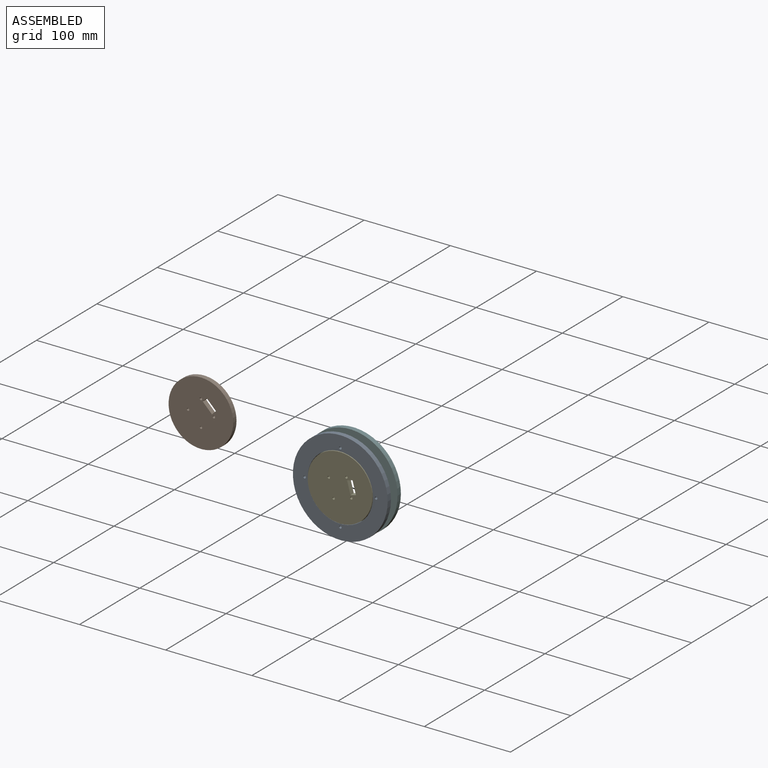
[diagram: assembled view]
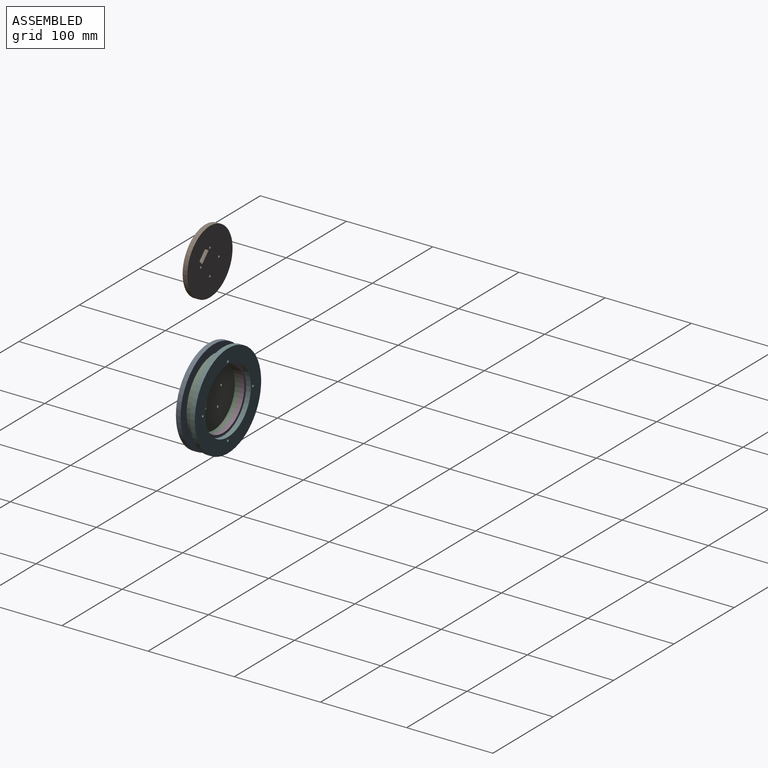
[diagram: assembled view, second angle]
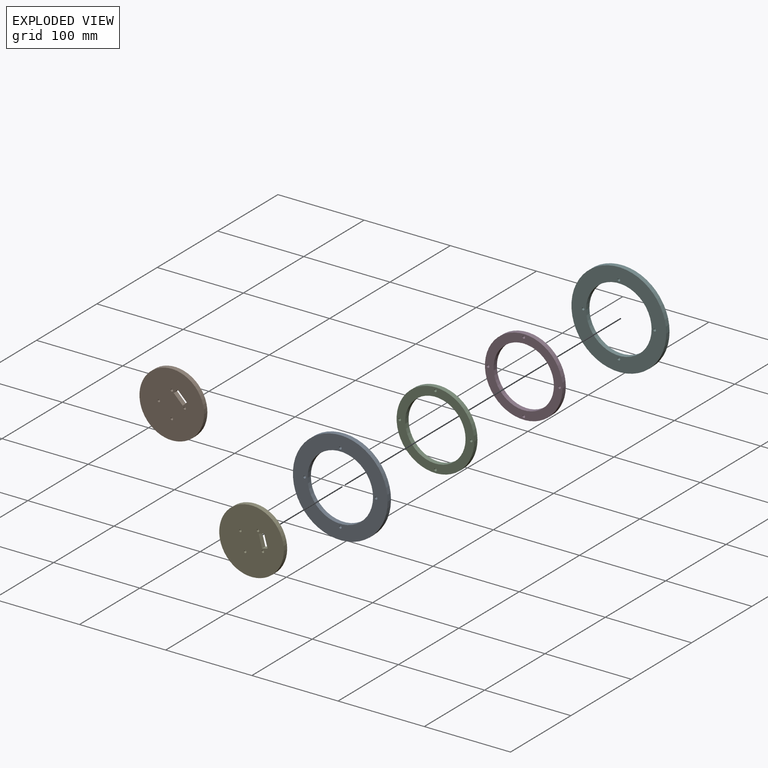
[diagram: exploded view]
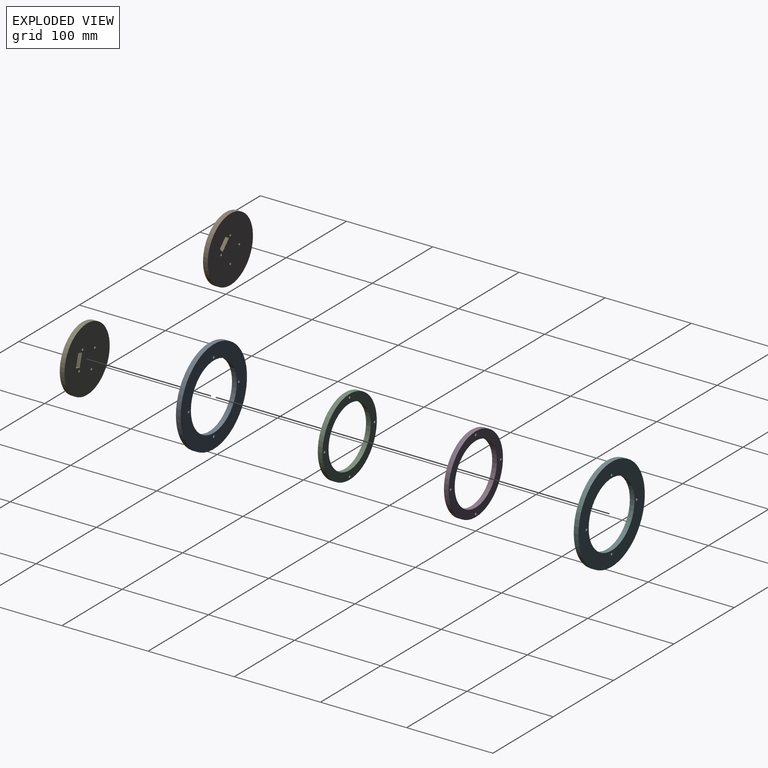
[diagram: exploded view, second angle]
ASSEMBLY  parts=6 mates=7
PART A: 8 faces, bbox 110x5.5x110 mm
  f0: cylinder r=1.5mm len=5.47mm, axis (0,1,0), area 51.6mm2, adj f6,f7
  f1: cylinder r=1.5mm len=5.47mm, axis (0,1,0), area 51.6mm2, adj f6,f7
  f2: cylinder r=1.5mm len=5.47mm, axis (0,1,0), area 51.6mm2, adj f6,f7
  f3: cylinder r=1.5mm len=5.47mm, axis (0,1,0), area 51.6mm2, adj f6,f7
  f4: cylinder r=38mm len=76mm, axis (0,1,0), area 1306mm2, adj f6,f7
  f5: cylinder r=55mm len=110mm, axis (0,1,0), area 1890.3mm2, adj f6,f7
  f6: plane 110x110mm, normal (0,-1,0), area 4938.6mm2, adj f0,f1,f2,f3,f4,f5
  f7: plane 110x110mm, normal (0,1,0), area 4938.6mm2, adj f0,f1,f2,f3,f4,f5
PART B: 11 faces, bbox 75x5.5x75 mm
  f0: plane 10.61x10.61mm, normal (0.71,0,0.71), area 82.1mm2, adj f1,f3,f5,f6
  f1: plane 5.47x4.64mm, normal (0.71,0,-0.71), area 35.9mm2, adj f0,f2,f5,f6
  f2: plane 10.61x10.61mm, normal (-0.71,0,-0.71), area 82mm2, adj f1,f3,f5,f6
  f3: plane 5.47x4.64mm, normal (-0.71,0,0.71), area 35.9mm2, adj f0,f2,f5,f6
  f4: cylinder r=37.5mm len=75mm, axis (0,1,0), area 1288.8mm2, adj f5,f6
  f5: plane 75x75mm, normal (0,-1,0), area 4294.4mm2, adj f0,f1,f2,f3,f4,f7,f8,f9
  f6: plane 75x75mm, normal (0,1,0), area 4294.4mm2, adj f0,f1,f2,f3,f4,f7,f8,f9
  f7: cylinder r=1.41mm len=5.47mm, axis (0,1,0), area 48.5mm2, adj f5,f6
  f8: cylinder r=1.41mm len=5.47mm, axis (0,1,0), area 48.5mm2, adj f5,f6
  f9: cylinder r=1.41mm len=5.47mm, axis (0,1,0), area 48.5mm2, adj f5,f6
  f10: cylinder r=1.41mm len=5.47mm, axis (0,1,0), area 48.5mm2, adj f5,f6
PART C: 8 faces, bbox 90x5.5x90 mm
  f0: cylinder r=1.5mm len=5.47mm, axis (0,1,0), area 51.6mm2, adj f6,f7
  f1: cylinder r=1.5mm len=5.47mm, axis (0,1,0), area 51.6mm2, adj f6,f7
  f2: cylinder r=1.5mm len=5.47mm, axis (0,1,0), area 51.6mm2, adj f6,f7
  f3: cylinder r=1.5mm len=5.47mm, axis (0,1,0), area 51.6mm2, adj f6,f7
  f4: cylinder r=35mm len=70mm, axis (0,1,0), area 1202.9mm2, adj f6,f7
  f5: cylinder r=45mm len=90mm, axis (0,1,0), area 1546.6mm2, adj f6,f7
  f6: plane 90x90mm, normal (0,-1,0), area 2485mm2, adj f0,f1,f2,f3,f4,f5
  f7: plane 90x90mm, normal (0,1,0), area 2485mm2, adj f0,f1,f2,f3,f4,f5
PART D: same geometry as C
PART E: same geometry as B
PART F: same geometry as A
PLACE A t=(-0.67,-4.27,12.19)mm fixed
PLACE B t=(-107.07,-83.25,91.94)mm
PLACE C t=(-0.67,1.2,12.19)mm
PLACE D t=(-0.67,6.67,12.19)mm
PLACE E rot(axis=(0,1,0),29.6deg) t=(-0.67,-4.78,12.19)mm
PLACE F t=(-0.67,12.14,12.19)mm
MATE planar F.f4 <-> D.f4  axis (0,-1,0) through (-0.67,6.67,12.19)mm
MATE cylindrical F.f4 <-> D.f4  axis (0,-1,0) through (-0.67,6.67,12.19)mm
MATE cylindrical E.f4 <-> A.f4  axis (0,1,0) through (-0.67,-4.78,12.19)mm
MATE planar C.f4 <-> A.f4  axis (0,-1,0) through (-0.67,-4.27,12.19)mm
MATE cylindrical C.f4 <-> D.f4  axis (0,1,0) through (-0.67,1.2,12.19)mm
MATE planar D.f4 <-> C.f0  axis (0,-1,0) through (-0.67,1.2,12.19)mm
MATE cylindrical C.f4 <-> A.f4  axis (0,-1,0) through (-0.67,-4.27,12.19)mm
